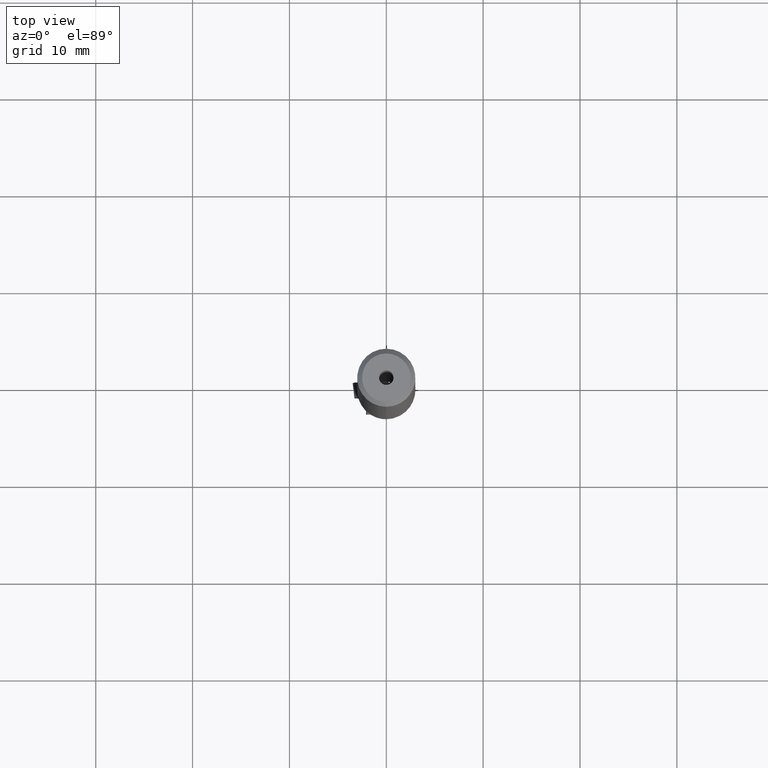
[diagram: clean part render]
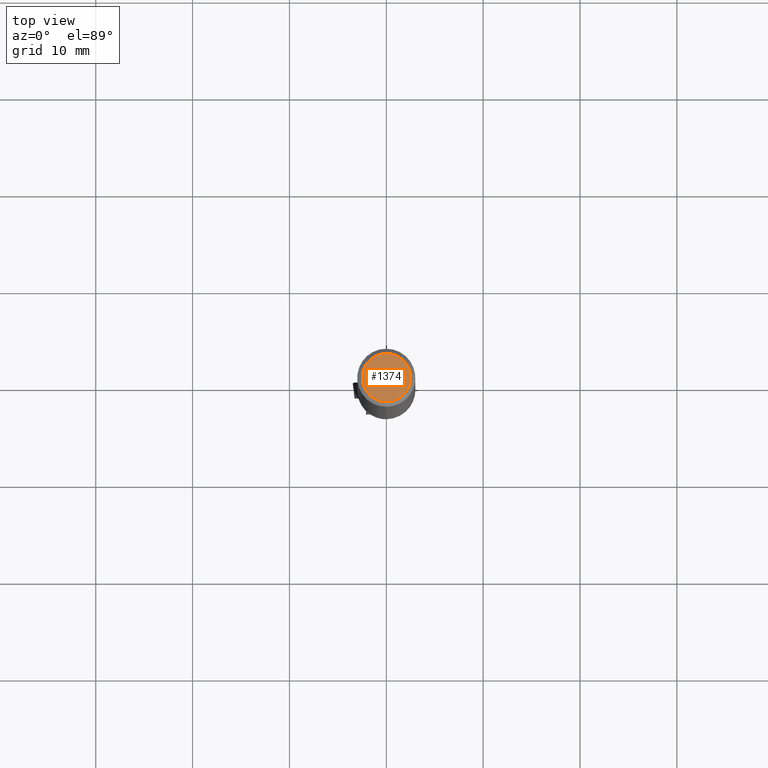
[diagram: same view with one face highlighted and labeled with its STEP entity id]
A machine part, top view. The second image highlights one B-rep face of the part: STEP entity #1374.
In plain terms, the highlighted planar face has unit normal (0, 0, -1).
Its self-contained STEP definition (entity closure, byte-faithful):
#822=VERTEX_POINT('NONE',#1870);
#1010=VERTEX_POINT('NONE',#2080);
#1018=VERTEX_POINT('NONE',#2088);
#1122=VERTEX_POINT('NONE',#2202);
#1168=EDGE_CURVE('NONE',#1122,#1018,#2253,.T.);
#1172=EDGE_CURVE('NONE',#822,#1010,#2257,.T.);
#1316=EDGE_CURVE('NONE',#1018,#1122,#2414,.T.);
#1374=ADVANCED_FACE('NONE',(#2478,#2479),#2480,.F.);
#1428=EDGE_CURVE('NONE',#1010,#822,#2538,.T.);
#1870=CARTESIAN_POINT('',(-3.36777869765521E-016,2.5,0.0));
#2080=CARTESIAN_POINT('',(0.0,-2.5,0.0));
#2088=CARTESIAN_POINT('',(-9.18485099360515E-017,-0.75,0.0));
#2202=CARTESIAN_POINT('',(0.0,0.75,0.0));
#2253=CIRCLE('',#3706,0.75);
#2257=CIRCLE('',#3711,2.5);
#2414=CIRCLE('',#3941,0.75);
#2478=FACE_OUTER_BOUND('',#4070,.T.);
#2479=FACE_BOUND('',#4071,.T.);
#2480=PLANE('',#4072);
#2538=CIRCLE('',#4155,2.5);
#3706=AXIS2_PLACEMENT_3D('',#5174,#5175,#5176);
#3711=AXIS2_PLACEMENT_3D('',#5177,#5178,#5179);
#3941=AXIS2_PLACEMENT_3D('',#5353,#5354,#5355);
#4070=EDGE_LOOP('',(#5435,#5436));
#4071=EDGE_LOOP('',(#5437,#5438));
#4072=AXIS2_PLACEMENT_3D('',#5439,#5440,#5441);
#4155=AXIS2_PLACEMENT_3D('',#5495,#5496,#5497);
#5174=CARTESIAN_POINT('',(0.0,0.0,0.0));
#5175=DIRECTION('',(0.0,-0.0,1.0));
#5176=DIRECTION('',(0.0,1.0,0.0));
#5177=CARTESIAN_POINT('',(0.0,0.0,0.0));
#5178=DIRECTION('',(0.0,-0.0,1.0));
#5179=DIRECTION('',(0.0,1.0,0.0));
#5353=CARTESIAN_POINT('',(0.0,0.0,0.0));
#5354=DIRECTION('',(0.0,-0.0,1.0));
#5355=DIRECTION('',(0.0,1.0,0.0));
#5435=ORIENTED_EDGE('',*,*,#1428,.T.);
#5436=ORIENTED_EDGE('',*,*,#1172,.T.);
#5437=ORIENTED_EDGE('',*,*,#1168,.F.);
#5438=ORIENTED_EDGE('',*,*,#1316,.F.);
#5439=CARTESIAN_POINT('',(-2.5,0.0,0.0));
#5440=DIRECTION('',(0.0,0.0,-1.0));
#5441=DIRECTION('',(-1.0,0.0,0.0));
#5495=CARTESIAN_POINT('',(0.0,0.0,0.0));
#5496=DIRECTION('',(0.0,-0.0,1.0));
#5497=DIRECTION('',(0.0,1.0,0.0));